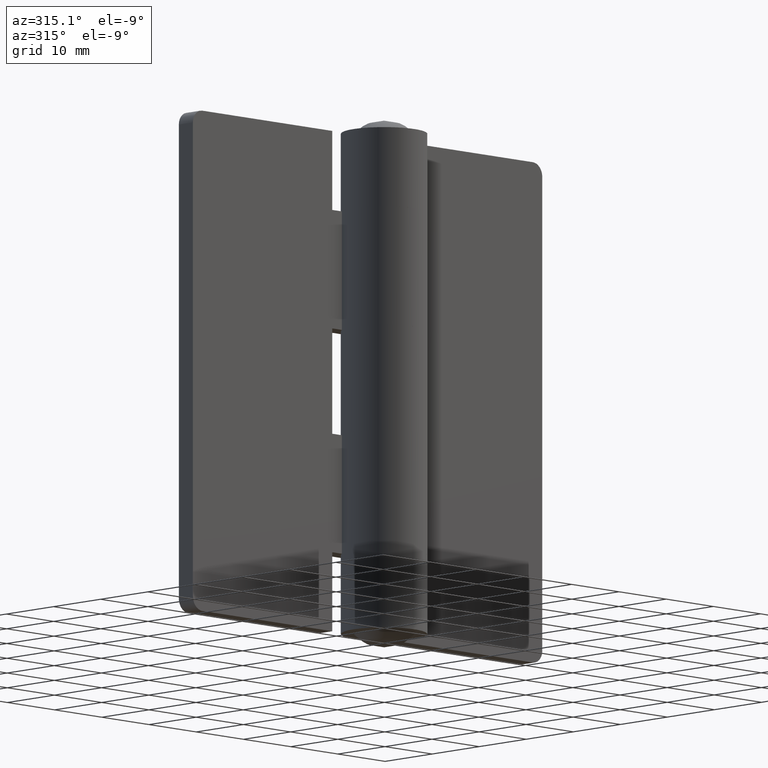
[diagram: clean part render]
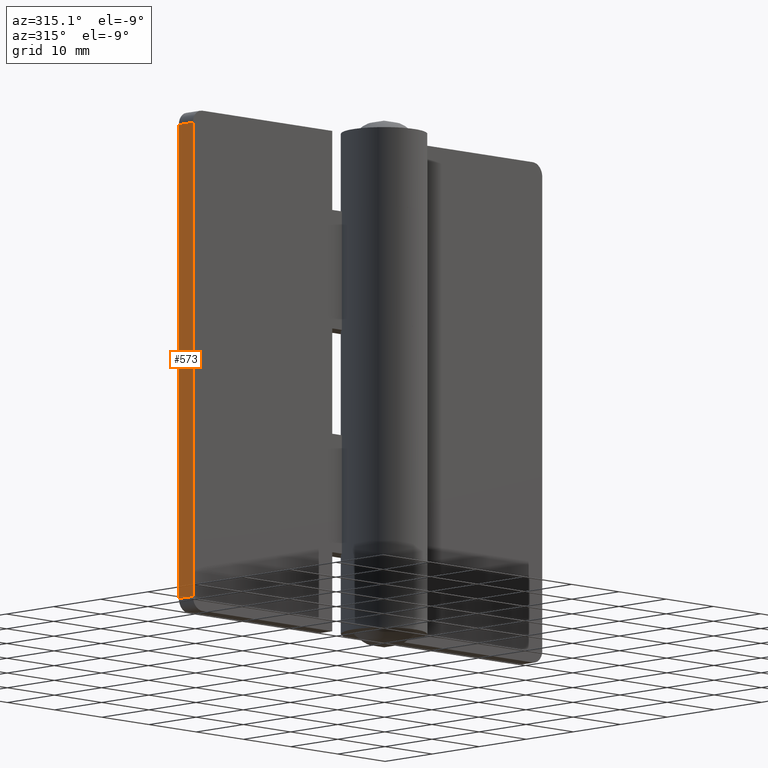
[diagram: same view with one face highlighted and labeled with its STEP entity id]
A machine part, auxiliary view. The second image highlights one B-rep face of the part: STEP entity #573.
In plain terms, the highlighted face is a freeform B-spline surface patch.
Its self-contained STEP definition (entity closure, byte-faithful):
#58=CARTESIAN_POINT('',(-37.000007999999902,6.500000000000000,74.0));
#59=VERTEX_POINT('',#58);
#75=CARTESIAN_POINT('',(-37.000007999999902,3.500000000000000,74.0));
#76=VERTEX_POINT('',#75);
#77=CARTESIAN_POINT('',(-37.000007999999902,3.500000000000000,74.0));
#78=CARTESIAN_POINT('',(-37.000007999999902,6.500000000000000,74.0));
#79=QUASI_UNIFORM_CURVE('',1,(#77,#78),.UNSPECIFIED.,.F.,.U.);
#80=EDGE_CURVE('',#76,#59,#79,.T.);
#121=CARTESIAN_POINT('',(-37.000007999999902,6.500000000000000,2.0));
#122=VERTEX_POINT('',#121);
#143=CARTESIAN_POINT('',(-37.000007999999902,3.500000000000000,2.0));
#144=VERTEX_POINT('',#143);
#158=CARTESIAN_POINT('',(-37.000007999999902,6.500000000000000,2.0));
#159=CARTESIAN_POINT('',(-37.000007999999902,3.500000000000000,2.0));
#160=QUASI_UNIFORM_CURVE('',1,(#158,#159),.UNSPECIFIED.,.F.,.U.);
#161=EDGE_CURVE('',#122,#144,#160,.T.);
#554=CARTESIAN_POINT('',(-37.000007999999902,3.350150005814581,77.596399860450049));
#555=CARTESIAN_POINT('',(-37.000007999999902,3.350150005814581,-1.596401791640515));
#556=CARTESIAN_POINT('',(-37.000007999999902,6.649850074651688,77.596399860450049));
#557=CARTESIAN_POINT('',(-37.000007999999902,6.649850074651688,-1.596401791640515));
#558=B_SPLINE_SURFACE_WITH_KNOTS('',1,1,((#554,#556),(#555,#557)),.UNSPECIFIED.,.F.,.F.,.U.,(2,2),(2,2),(0.0,79.192801652090566),(0.0,3.299700068837107),.UNSPECIFIED.);
#559=CARTESIAN_POINT('',(-37.000007999999902,6.500000000000000,74.0));
#560=CARTESIAN_POINT('',(-37.000007999999902,6.500000000000000,2.0));
#561=QUASI_UNIFORM_CURVE('',1,(#559,#560),.UNSPECIFIED.,.F.,.U.);
#562=EDGE_CURVE('',#59,#122,#561,.T.);
#563=ORIENTED_EDGE('',*,*,#562,.T.);
#564=ORIENTED_EDGE('',*,*,#161,.T.);
#565=CARTESIAN_POINT('',(-37.000007999999902,3.500000000000000,74.0));
#566=CARTESIAN_POINT('',(-37.000007999999902,3.500000000000000,2.0));
#567=QUASI_UNIFORM_CURVE('',1,(#565,#566),.UNSPECIFIED.,.F.,.U.);
#568=EDGE_CURVE('',#76,#144,#567,.T.);
#569=ORIENTED_EDGE('',*,*,#568,.F.);
#570=ORIENTED_EDGE('',*,*,#80,.T.);
#571=EDGE_LOOP('',(#563,#564,#569,#570));
#572=FACE_OUTER_BOUND('',#571,.T.);
#573=ADVANCED_FACE('',(#572),#558,.F.);